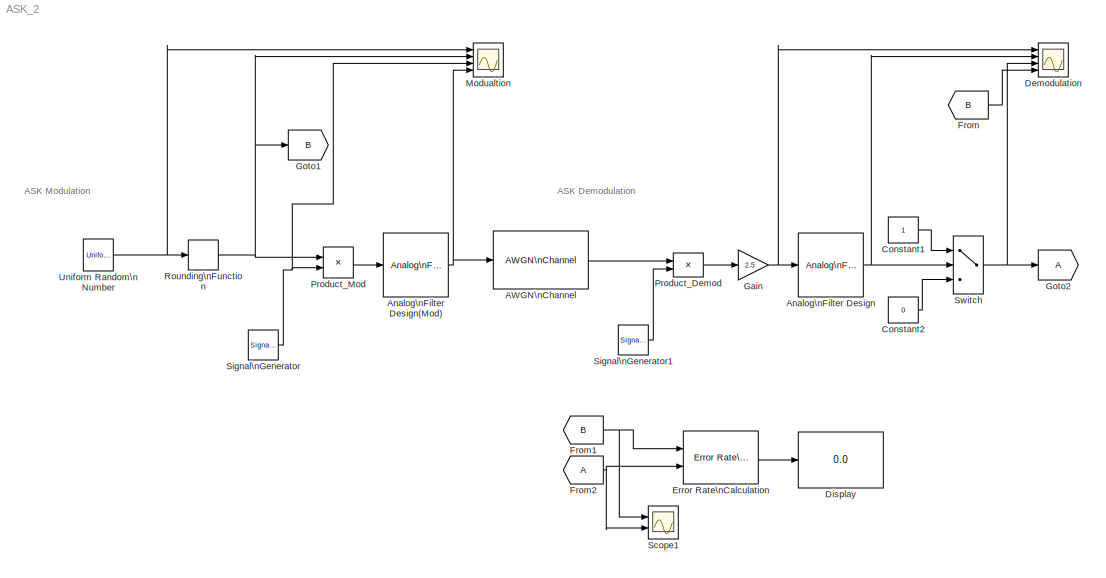
MODEL ASK_2
KIND model
BLOCK [Reference] AWGN\nChannel  REF=commchan3/AWGN\nChannel
  EbNodB = 10
  EsNodB = 10
  InputProcessing = Columns as channels (frame based)
  Ports = [1, 1]
  Ps = 1
  SID = 22
  SNRdB = 30
  SourceBlock = commchan3/AWGN\nChannel
  SourceProductBaseCode = CM
  SourceProductName = Communications System Toolbox
  SourceType = AWGN Channel
  Tsym = 1
  UserData = DataTag0
  UserDataPersistent = on
  bitsPerSym = 1
  noiseMode = Signal to noise ratio  (SNR)
  seed = 67
  variance = 1
BLOCK [Reference] Analog\nFilter Design  REF=dsparch4/Analog\nFilter Design
  N = 8
  Ports = [1, 1]
  Rp = 2
  Rs = 40
  SID = 12
  SourceBlock = dsparch4/Analog\nFilter Design
  SourceProductBaseCode = DS
  SourceProductName = DSP System Toolbox
  SourceType = Analog Filter Design
  Whi = 80
  Wlo = 30
  filttype = Lowpass
  method = Butterworth
BLOCK [Reference] Analog\nFilter Design(Mod)  REF=dsparch4/Analog\nFilter Design
  N = 8
  Ports = [1, 1]
  Rp = 2
  Rs = 40
  SID = 45
  SourceBlock = dsparch4/Analog\nFilter Design
  SourceProductBaseCode = DS
  SourceProductName = DSP System Toolbox
  SourceType = Analog Filter Design
  Whi = 800/(2*pi)
  Wlo = 1/(2*pi)
  filttype = Bandpass
  method = Butterworth
BLOCK [Constant] Constant1
  SID = 40
BLOCK [Constant] Constant2
  SID = 41
  Value = 0
BLOCK [Scope] Demodulation
  NumInputPorts = 4
  Ports = [4]
  SID = 19
  ScopeSpecificationString = Simulink.scopes.TimeScopeBlockCfg('CurrentConfiguration', extmgr.ConfigurationSet(extmgr.Configuration('Core','General UI',true,'FigureColor',[0 0 0]),extmgr.Configuration('Core','Source UI',true),extmgr.Configuration('Sources','WiredSimulink',true),extmgr.Configuration('Visuals','Time Domain',true,'SerializedDisplays',{struct('MinYLimReal','-3.55049','MaxYLimReal','5.11798','YLabelReal','','MinYL...<+3731ch>
BLOCK [Display] Display
  Decimation = 1
  Ports = [1]
  SID = 36
BLOCK [Reference] Error Rate\nCalculation  REF=commsink2/Error Rate\nCalculation
  N = 0
  PMode = Port
  Ports = [2, 1]
  RsMode2 = off
  SID = 26
  SourceBlock = commsink2/Error Rate\nCalculation
  SourceProductBaseCode = CM
  SourceProductName = Communications System Toolbox
  SourceType = Error Rate Calculation
  WsName = ErrorVec
  cp_mode = Entire frame
  maxBits = 1e6
  numErr = 100
  st_delay = 0
  stop = off
  subframe = []
BLOCK [From] From
  GotoTag = B
  SID = 25
BLOCK [From] From1
  GotoTag = B
  SID = 28
BLOCK [From] From2
  SID = 32
BLOCK [Gain] Gain
  Gain = 2.5
  OutDataTypeStr = Inherit: Inherit via internal rule
  ParamDataTypeStr = Inherit: Inherit via internal rule
  SID = 20
  SaturateOnIntegerOverflow = off
BLOCK [Goto] Goto1
  GotoTag = B
  SID = 24
BLOCK [Goto] Goto2
  SID = 33
BLOCK [Scope] Modualtion
  NumInputPorts = 4
  Ports = [4]
  SID = 7
  ScopeSpecificationString = Simulink.scopes.TimeScopeBlockCfg('CurrentConfiguration', extmgr.ConfigurationSet(extmgr.Configuration('Core','General UI',true,'FigureColor',[0 0 0]),extmgr.Configuration('Core','Source UI',true),extmgr.Configuration('Sources','WiredSimulink',true,'DataLoggingVariableName','ScopeData1'),extmgr.Configuration('Visuals','Time Domain',true,'SerializedDisplays',{struct('MinYLimReal','-0.06391','MaxYLi...<+3785ch>
BLOCK [Product] Product_Demod
  Ports = [2, 1]
  RndMeth = Floor
  SID = 10
BLOCK [Product] Product_Mod
  InputSameDT = off
  OutDataTypeStr = Inherit: Inherit via internal rule
  Ports = [2, 1]
  RndMeth = Floor
  SID = 1
  SaturateOnIntegerOverflow = off
BLOCK [Rounding] Rounding\nFunction
  Operator = round
  SID = 3
BLOCK [Scope] Scope1
  NumInputPorts = 2
  Ports = [2]
  SID = 35
  ScopeSpecificationString = Simulink.scopes.TimeScopeBlockCfg('CurrentConfiguration', extmgr.ConfigurationSet(extmgr.Configuration('Core','General UI',true),extmgr.Configuration('Core','Source UI',true),extmgr.Configuration('Sources','WiredSimulink',true,'DataLoggingVariableName','ScopeData3'),extmgr.Configuration('Visuals','Time Domain',true,'SerializedDisplays',{struct('MinYLimReal','-0.125','MaxYLimReal','1.125','YLabelRe...<+2059ch>
BLOCK [SignalGenerator] Signal\nGenerator
  Frequency = 4
  Ports = [0, 1]
  SID = 8
BLOCK [SignalGenerator] Signal\nGenerator1
  Frequency = 4
  Ports = [0, 1]
  SID = 11
BLOCK [Switch] Switch
  RndMeth = Round
  SID = 39
  Threshold = 0.5
BLOCK [UniformRandomNumber] Uniform Random\nNumber
  Minimum = 0
  SID = 4
  SampleTime = 1
ANNOTATION (root): ASK Demodulation
ANNOTATION (root): ASK Modulation
LINE AWGN\nChannel:1 -> Product_Demod:1
NET Analog\nFilter Design(Mod):1 -> AWGN\nChannel:1, Modualtion:4
NET Analog\nFilter Design:1 -> Demodulation:2, Switch:2
LINE Constant1:1 -> Switch:1
LINE Constant2:1 -> Switch:3
LINE Error Rate\nCalculation:1 -> Display:1
NET From1:1 -> Error Rate\nCalculation:1, Scope1:1
NET From2:1 -> Error Rate\nCalculation:2, Scope1:2
LINE From:1 -> Demodulation:4
NET Gain:1 -> Analog\nFilter Design:1, Demodulation:1
LINE Product_Demod:1 -> Gain:1
LINE Product_Mod:1 -> Analog\nFilter Design(Mod):1
NET Rounding\nFunction:1 -> Goto1:1, Modualtion:2, Product_Mod:1
LINE Signal\nGenerator1:1 -> Product_Demod:2
NET Signal\nGenerator:1 -> Modualtion:3, Product_Mod:2
NET Switch:1 -> Demodulation:3, Goto2:1
NET Uniform Random\nNumber:1 -> Modualtion:1, Rounding\nFunction:1
note: NET lines group one-source signal fan-out (src -> all destinations, sorted); 1:1 wires keep LINE
